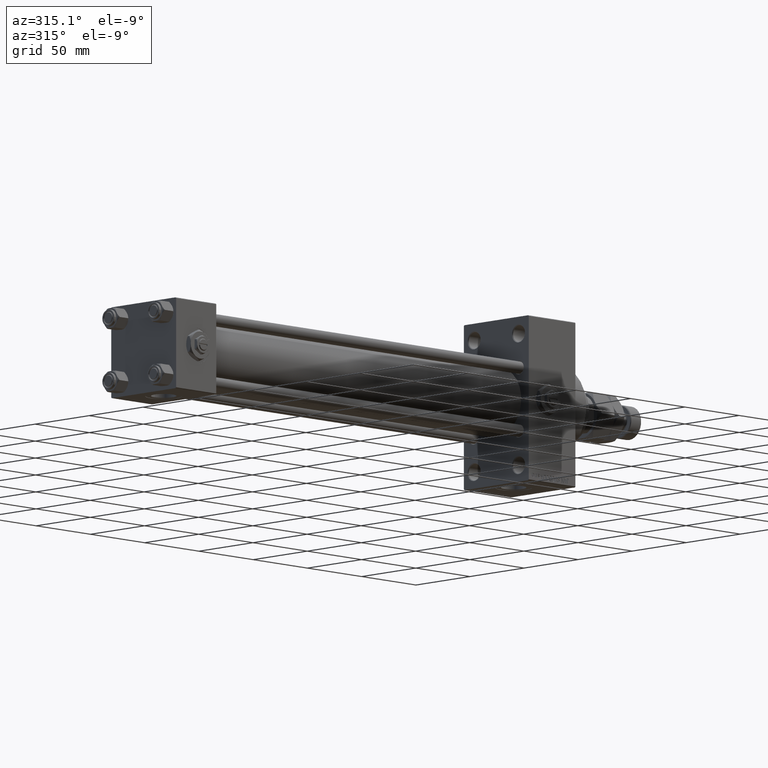
[diagram: clean part render]
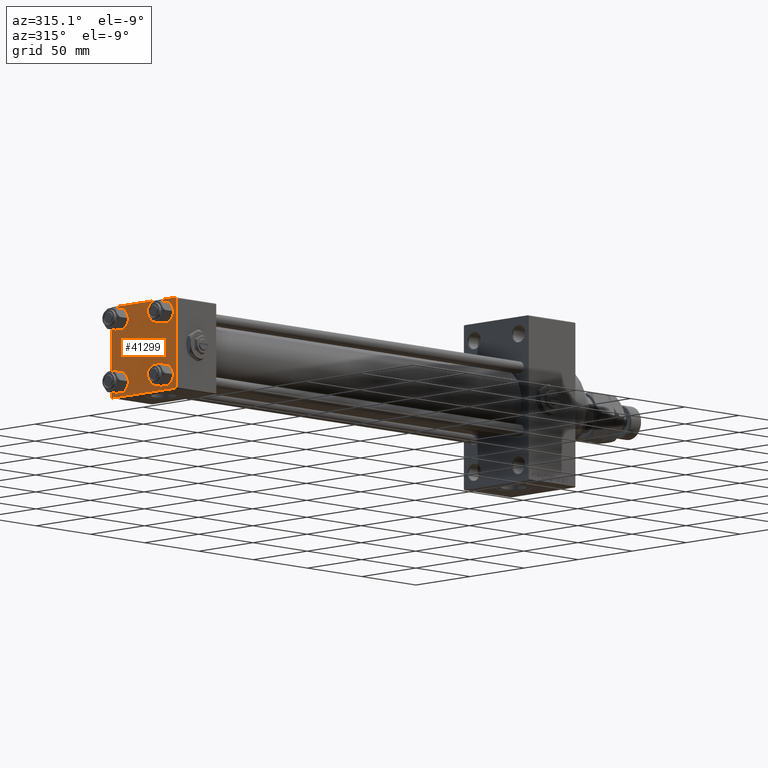
[diagram: same view with one face highlighted and labeled with its STEP entity id]
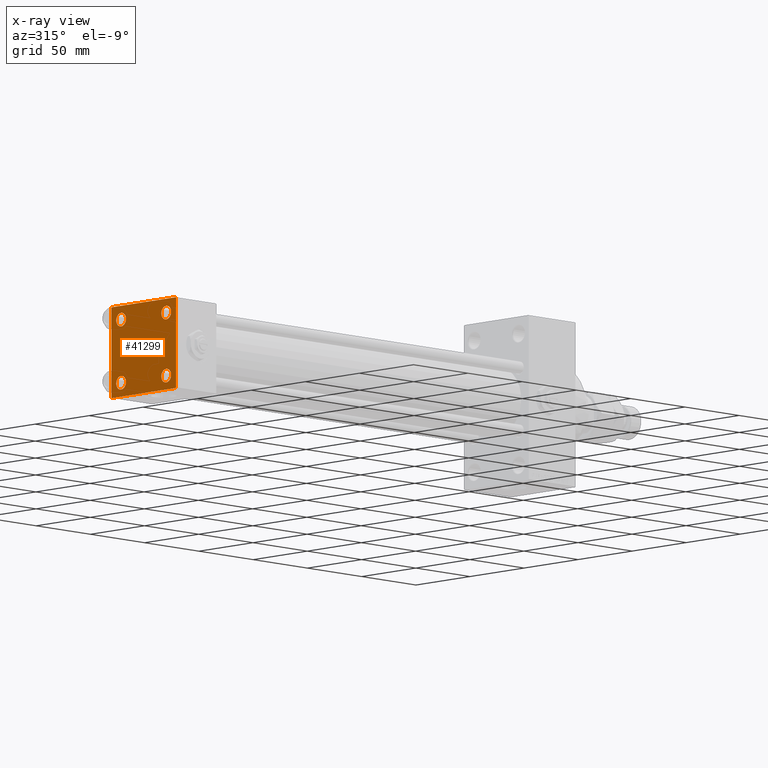
[diagram: x-ray of the same camera — body ghosted, the highlighted face saturated]
A machine part, auxiliary view. The second image highlights one B-rep face of the part: STEP entity #41299.
The next image is the same camera in x-ray: the body ghosted, the highlighted face saturated — about 0% of this face is hidden behind the body in this view.
In plain terms, the highlighted planar face has unit normal (-1, 0, 0).
Its self-contained STEP definition (entity closure, byte-faithful):
#36 = CARTESIAN_POINT ( 'NONE',  ( 0.000000000000000000, 20.84999999999999787, 25.35000000000001918 ) ) ;
#153 = DIRECTION ( 'NONE',  ( 0.000000000000000000, 0.000000000000000000, 1.000000000000000000 ) ) ;
#891 = CARTESIAN_POINT ( 'NONE',  ( 0.000000000000000000, 29.99999999999999289, 30.00000000000000000 ) ) ;
#938 = VERTEX_POINT ( 'NONE', #36 ) ;
#1832 = AXIS2_PLACEMENT_3D ( 'NONE', #27730, #42947, #23353 ) ;
#1885 = EDGE_CURVE ( 'NONE', #30504, #16673, #17586, .T. ) ;
#1929 = VECTOR ( 'NONE', #48759, 999.9999999999998863 ) ;
#2077 = EDGE_LOOP ( 'NONE', ( #48048, #6523 ) ) ;
#3176 = AXIS2_PLACEMENT_3D ( 'NONE', #49252, #48991, #9821 ) ;
#3345 = VERTEX_POINT ( 'NONE', #32100 ) ;
#3399 = ORIENTED_EDGE ( 'NONE', *, *, #36228, .T. ) ;
#3922 = CARTESIAN_POINT ( 'NONE',  ( 0.000000000000000000, 29.99999999999999289, -30.00000000000000000 ) ) ;
#4025 = CARTESIAN_POINT ( 'NONE',  ( 0.000000000000000000, 0.000000000000000000, 0.000000000000000000 ) ) ;
#4304 = CIRCLE ( 'NONE', #1832, 4.500000000000017764 ) ;
#4517 = ORIENTED_EDGE ( 'NONE', *, *, #1885, .T. ) ;
#4572 = VECTOR ( 'NONE', #13575, 1000.000000000000114 ) ;
#4588 = AXIS2_PLACEMENT_3D ( 'NONE', #13532, #49086, #34154 ) ;
#4680 = DIRECTION ( 'NONE',  ( 0.000000000000000000, -0.7071067811865474617, 0.7071067811865474617 ) ) ;
#5182 = ORIENTED_EDGE ( 'NONE', *, *, #26617, .T. ) ;
#5224 = DIRECTION ( 'NONE',  ( -1.000000000000000000, 0.000000000000000000, -0.000000000000000000 ) ) ;
#5282 = DIRECTION ( 'NONE',  ( 0.000000000000000000, 0.000000000000000000, 1.000000000000000000 ) ) ;
#6051 = ORIENTED_EDGE ( 'NONE', *, *, #21838, .T. ) ;
#6263 = ORIENTED_EDGE ( 'NONE', *, *, #38688, .T. ) ;
#6313 = CARTESIAN_POINT ( 'NONE',  ( 0.000000000000000000, -20.84999999999999076, -25.35000000000002274 ) ) ;
#6461 = CIRCLE ( 'NONE', #3176, 4.500000000000017764 ) ;
#6523 = ORIENTED_EDGE ( 'NONE', *, *, #47506, .T. ) ;
#6798 = VERTEX_POINT ( 'NONE', #36308 ) ;
#6914 = ORIENTED_EDGE ( 'NONE', *, *, #26059, .T. ) ;
#7237 = CARTESIAN_POINT ( 'NONE',  ( 0.000000000000000000, -29.50000000000000000, -30.00000000000000711 ) ) ;
#7353 = VERTEX_POINT ( 'NONE', #26146 ) ;
#7535 = LINE ( 'NONE', #3922, #12520 ) ;
#9188 = CARTESIAN_POINT ( 'NONE',  ( -0.000000000000000000, -29.74999999999999645, 29.74999999999999645 ) ) ;
#9408 = CARTESIAN_POINT ( 'NONE',  ( 0.000000000000000000, -20.84999999999999076, 16.34999999999998721 ) ) ;
#9445 = CIRCLE ( 'NONE', #24283, 4.500000000000017764 ) ;
#9655 = CARTESIAN_POINT ( 'NONE',  ( 0.000000000000000000, 29.99999999999999289, 30.00000000000000000 ) ) ;
#9821 = DIRECTION ( 'NONE',  ( 0.000000000000000000, 0.000000000000000000, 1.000000000000000000 ) ) ;
#9938 = EDGE_CURVE ( 'NONE', #13258, #23783, #43615, .T. ) ;
#10750 = EDGE_CURVE ( 'NONE', #3345, #12934, #44501, .T. ) ;
#12215 = CARTESIAN_POINT ( 'NONE',  ( 0.000000000000000000, 20.84999999999999787, -16.34999999999998366 ) ) ;
#12520 = VECTOR ( 'NONE', #19150, 1000.000000000000000 ) ;
#12716 = FACE_BOUND ( 'NONE', #13023, .T. ) ;
#12754 = LINE ( 'NONE', #891, #13159 ) ;
#12934 = VERTEX_POINT ( 'NONE', #46987 ) ;
#13023 = EDGE_LOOP ( 'NONE', ( #3399, #50595 ) ) ;
#13159 = VECTOR ( 'NONE', #50912, 1000.000000000000000 ) ;
#13258 = VERTEX_POINT ( 'NONE', #7237 ) ;
#13449 = VERTEX_POINT ( 'NONE', #34533 ) ;
#13532 = CARTESIAN_POINT ( 'NONE',  ( 0.000000000000000000, -20.84999999999999076, -20.85000000000000497 ) ) ;
#13575 = DIRECTION ( 'NONE',  ( -0.000000000000000000, 0.7071067811865474617, 0.7071067811865474617 ) ) ;
#15651 = FACE_BOUND ( 'NONE', #2077, .T. ) ;
#15825 = DIRECTION ( 'NONE',  ( 0.000000000000000000, 0.7071067811865474617, -0.7071067811865474617 ) ) ;
#15837 = CARTESIAN_POINT ( 'NONE',  ( 0.000000000000000000, -30.00000000000000000, 29.99999999999999289 ) ) ;
#16647 = CIRCLE ( 'NONE', #28152, 4.500000000000017764 ) ;
#16673 = VERTEX_POINT ( 'NONE', #27121 ) ;
#17113 = CARTESIAN_POINT ( 'NONE',  ( 0.000000000000000000, 20.84999999999999787, 16.34999999999998366 ) ) ;
#17479 = VERTEX_POINT ( 'NONE', #6313 ) ;
#17586 = LINE ( 'NONE', #44395, #1929 ) ;
#18466 = EDGE_CURVE ( 'NONE', #3345, #23783, #23549, .T. ) ;
#18891 = ORIENTED_EDGE ( 'NONE', *, *, #18466, .F. ) ;
#19150 = DIRECTION ( 'NONE',  ( 0.000000000000000000, -1.000000000000000000, -1.156482317317871725E-16 ) ) ;
#19704 = DIRECTION ( 'NONE',  ( 1.000000000000000000, -0.000000000000000000, 0.000000000000000000 ) ) ;
#20428 = CARTESIAN_POINT ( 'NONE',  ( 0.000000000000000000, 29.49999999999999289, 30.00000000000000000 ) ) ;
#20683 = CARTESIAN_POINT ( 'NONE',  ( 0.000000000000000000, -20.84999999999999076, -16.34999999999998721 ) ) ;
#20708 = FACE_OUTER_BOUND ( 'NONE', #27346, .T. ) ;
#20759 = CIRCLE ( 'NONE', #33143, 4.500000000000017764 ) ;
#21620 = EDGE_LOOP ( 'NONE', ( #41527, #6263 ) ) ;
#21838 = EDGE_CURVE ( 'NONE', #7353, #30504, #12754, .T. ) ;
#22215 = VERTEX_POINT ( 'NONE', #20683 ) ;
#22543 = CARTESIAN_POINT ( 'NONE',  ( 0.000000000000000000, 20.84999999999999787, -20.85000000000000142 ) ) ;
#23353 = DIRECTION ( 'NONE',  ( 0.000000000000000000, 0.000000000000000000, 1.000000000000000000 ) ) ;
#23536 = LINE ( 'NONE', #35423, #28155 ) ;
#23549 = LINE ( 'NONE', #15837, #24551 ) ;
#23770 = AXIS2_PLACEMENT_3D ( 'NONE', #49925, #30110, #38346 ) ;
#23783 = VERTEX_POINT ( 'NONE', #33152 ) ;
#24283 = AXIS2_PLACEMENT_3D ( 'NONE', #31113, #42950, #153 ) ;
#24551 = VECTOR ( 'NONE', #32585, 1000.000000000000000 ) ;
#24766 = CARTESIAN_POINT ( 'NONE',  ( 0.000000000000000000, 29.99999999999999289, -29.50000000000000000 ) ) ;
#24875 = DIRECTION ( 'NONE',  ( 0.000000000000000000, -1.000000000000000000, -1.156482317317871725E-16 ) ) ;
#25357 = CIRCLE ( 'NONE', #31147, 4.500000000000017764 ) ;
#25403 = CARTESIAN_POINT ( 'NONE',  ( 0.000000000000000000, 20.84999999999999787, -20.85000000000000142 ) ) ;
#26059 = EDGE_CURVE ( 'NONE', #32614, #7353, #23536, .T. ) ;
#26123 = AXIS2_PLACEMENT_3D ( 'NONE', #4025, #5224, #40562 ) ;
#26146 = CARTESIAN_POINT ( 'NONE',  ( 0.000000000000000000, 29.99999999999999289, 29.50000000000000000 ) ) ;
#26617 = EDGE_CURVE ( 'NONE', #16673, #13258, #7535, .T. ) ;
#26663 = DIRECTION ( 'NONE',  ( 1.000000000000000000, -0.000000000000000000, 0.000000000000000000 ) ) ;
#26820 = CIRCLE ( 'NONE', #4588, 4.500000000000017764 ) ;
#26869 = ORIENTED_EDGE ( 'NONE', *, *, #27453, .T. ) ;
#27121 = CARTESIAN_POINT ( 'NONE',  ( 0.000000000000000000, 29.49999999999997868, -30.00000000000000000 ) ) ;
#27346 = EDGE_LOOP ( 'NONE', ( #6051, #4517, #5182, #39025, #18891, #49551, #36950, #6914 ) ) ;
#27453 = EDGE_CURVE ( 'NONE', #13449, #39590, #4304, .T. ) ;
#27514 = EDGE_CURVE ( 'NONE', #32614, #12934, #48832, .T. ) ;
#27623 = VECTOR ( 'NONE', #4680, 1000.000000000000114 ) ;
#27730 = CARTESIAN_POINT ( 'NONE',  ( 0.000000000000000000, -20.84999999999999076, 20.85000000000000497 ) ) ;
#27835 = EDGE_LOOP ( 'NONE', ( #26869, #40925 ) ) ;
#28152 = AXIS2_PLACEMENT_3D ( 'NONE', #25403, #40876, #5282 ) ;
#28155 = VECTOR ( 'NONE', #15825, 1000.000000000000114 ) ;
#29998 = EDGE_CURVE ( 'NONE', #30221, #6798, #16647, .T. ) ;
#30095 = EDGE_CURVE ( 'NONE', #48705, #938, #20759, .T. ) ;
#30110 = DIRECTION ( 'NONE',  ( 1.000000000000000000, -0.000000000000000000, 0.000000000000000000 ) ) ;
#30221 = VERTEX_POINT ( 'NONE', #12215 ) ;
#30504 = VERTEX_POINT ( 'NONE', #24766 ) ;
#31113 = CARTESIAN_POINT ( 'NONE',  ( 0.000000000000000000, 20.84999999999999787, 20.85000000000000142 ) ) ;
#31147 = AXIS2_PLACEMENT_3D ( 'NONE', #22543, #19704, #39304 ) ;
#32100 = CARTESIAN_POINT ( 'NONE',  ( 0.000000000000000000, -30.00000000000000000, 29.49999999999999289 ) ) ;
#32307 = VECTOR ( 'NONE', #24875, 1000.000000000000000 ) ;
#32557 = CARTESIAN_POINT ( 'NONE',  ( 0.000000000000000000, -29.75000000000001066, -29.75000000000001066 ) ) ;
#32585 = DIRECTION ( 'NONE',  ( 0.000000000000000000, 0.000000000000000000, -1.000000000000000000 ) ) ;
#32614 = VERTEX_POINT ( 'NONE', #20428 ) ;
#32840 = FACE_BOUND ( 'NONE', #27835, .T. ) ;
#33143 = AXIS2_PLACEMENT_3D ( 'NONE', #41884, #26663, #33912 ) ;
#33152 = CARTESIAN_POINT ( 'NONE',  ( 0.000000000000000000, -30.00000000000000000, -29.50000000000001776 ) ) ;
#33912 = DIRECTION ( 'NONE',  ( 0.000000000000000000, 0.000000000000000000, 1.000000000000000000 ) ) ;
#34154 = DIRECTION ( 'NONE',  ( 0.000000000000000000, 0.000000000000000000, 1.000000000000000000 ) ) ;
#34533 = CARTESIAN_POINT ( 'NONE',  ( 0.000000000000000000, -20.84999999999999076, 25.35000000000002274 ) ) ;
#35423 = CARTESIAN_POINT ( 'NONE',  ( 0.000000000000000000, 29.74999999999999645, 29.74999999999999645 ) ) ;
#36228 = EDGE_CURVE ( 'NONE', #938, #48705, #9445, .T. ) ;
#36308 = CARTESIAN_POINT ( 'NONE',  ( 0.000000000000000000, 20.84999999999999787, -25.35000000000001918 ) ) ;
#36950 = ORIENTED_EDGE ( 'NONE', *, *, #27514, .F. ) ;
#38346 = DIRECTION ( 'NONE',  ( 0.000000000000000000, 0.000000000000000000, 1.000000000000000000 ) ) ;
#38688 = EDGE_CURVE ( 'NONE', #17479, #22215, #26820, .T. ) ;
#39025 = ORIENTED_EDGE ( 'NONE', *, *, #9938, .T. ) ;
#39304 = DIRECTION ( 'NONE',  ( 0.000000000000000000, 0.000000000000000000, 1.000000000000000000 ) ) ;
#39590 = VERTEX_POINT ( 'NONE', #9408 ) ;
#40562 = DIRECTION ( 'NONE',  ( -0.000000000000000000, 0.000000000000000000, 1.000000000000000000 ) ) ;
#40876 = DIRECTION ( 'NONE',  ( 1.000000000000000000, -0.000000000000000000, 0.000000000000000000 ) ) ;
#40925 = ORIENTED_EDGE ( 'NONE', *, *, #47993, .T. ) ;
#41299 = ADVANCED_FACE ( 'NONE', ( #32840, #48022, #15651, #12716, #20708 ), #48532, .T. ) ;
#41527 = ORIENTED_EDGE ( 'NONE', *, *, #45478, .T. ) ;
#41884 = CARTESIAN_POINT ( 'NONE',  ( 0.000000000000000000, 20.84999999999999787, 20.85000000000000142 ) ) ;
#42683 = CIRCLE ( 'NONE', #23770, 4.500000000000017764 ) ;
#42947 = DIRECTION ( 'NONE',  ( 1.000000000000000000, -0.000000000000000000, 0.000000000000000000 ) ) ;
#42950 = DIRECTION ( 'NONE',  ( 1.000000000000000000, -0.000000000000000000, 0.000000000000000000 ) ) ;
#43615 = LINE ( 'NONE', #32557, #27623 ) ;
#44395 = CARTESIAN_POINT ( 'NONE',  ( 0.000000000000000000, 29.74999999999957723, -29.75000000000040501 ) ) ;
#44501 = LINE ( 'NONE', #9188, #4572 ) ;
#45478 = EDGE_CURVE ( 'NONE', #22215, #17479, #6461, .T. ) ;
#46987 = CARTESIAN_POINT ( 'NONE',  ( 0.000000000000000000, -29.49999999999998579, 29.99999999999999289 ) ) ;
#47506 = EDGE_CURVE ( 'NONE', #6798, #30221, #25357, .T. ) ;
#47993 = EDGE_CURVE ( 'NONE', #39590, #13449, #42683, .T. ) ;
#48022 = FACE_BOUND ( 'NONE', #21620, .T. ) ;
#48048 = ORIENTED_EDGE ( 'NONE', *, *, #29998, .T. ) ;
#48532 = PLANE ( 'NONE',  #26123 ) ;
#48705 = VERTEX_POINT ( 'NONE', #17113 ) ;
#48759 = DIRECTION ( 'NONE',  ( -0.000000000000000000, -0.7071067811865574537, -0.7071067811865376918 ) ) ;
#48832 = LINE ( 'NONE', #9655, #32307 ) ;
#48991 = DIRECTION ( 'NONE',  ( 1.000000000000000000, -0.000000000000000000, 0.000000000000000000 ) ) ;
#49086 = DIRECTION ( 'NONE',  ( 1.000000000000000000, -0.000000000000000000, 0.000000000000000000 ) ) ;
#49252 = CARTESIAN_POINT ( 'NONE',  ( 0.000000000000000000, -20.84999999999999076, -20.85000000000000497 ) ) ;
#49551 = ORIENTED_EDGE ( 'NONE', *, *, #10750, .T. ) ;
#49925 = CARTESIAN_POINT ( 'NONE',  ( 0.000000000000000000, -20.84999999999999076, 20.85000000000000497 ) ) ;
#50595 = ORIENTED_EDGE ( 'NONE', *, *, #30095, .T. ) ;
#50912 = DIRECTION ( 'NONE',  ( 0.000000000000000000, 0.000000000000000000, -1.000000000000000000 ) ) ;